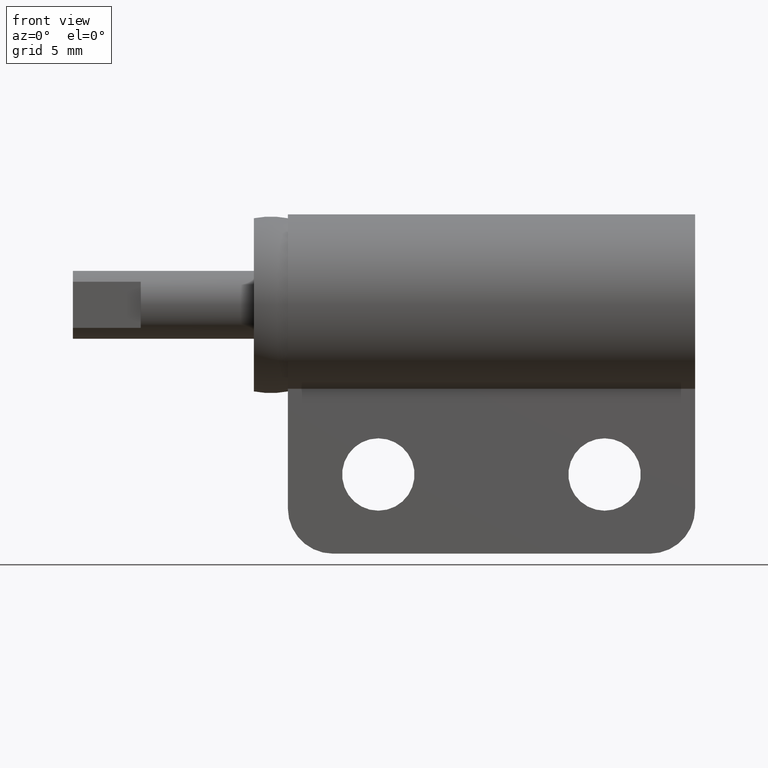
[diagram: clean part render]
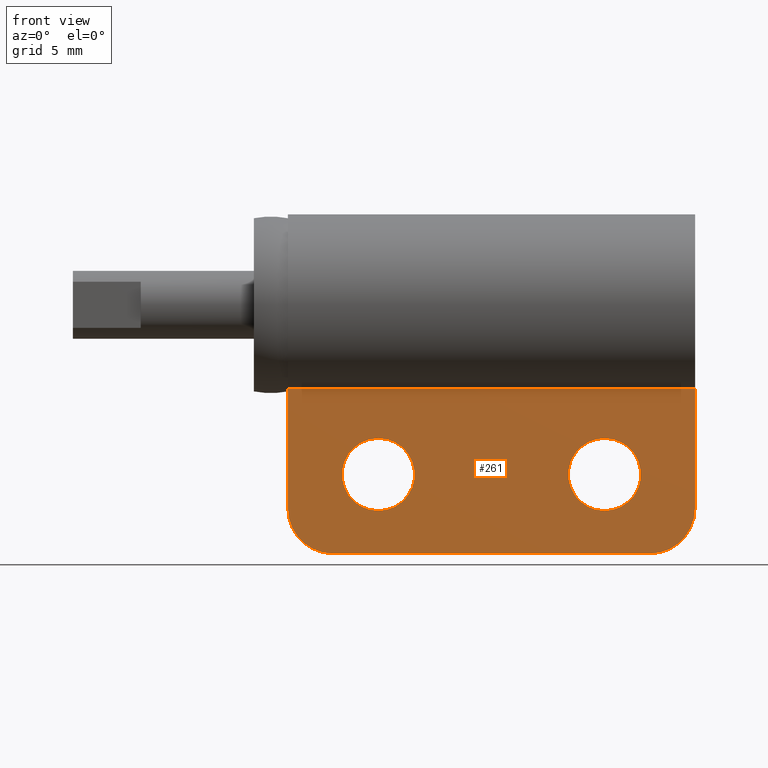
[diagram: same view with one face highlighted and labeled with its STEP entity id]
A machine part, front view. The second image highlights one B-rep face of the part: STEP entity #261.
In plain terms, the highlighted planar face has unit normal (0, 1, 0).
Its self-contained STEP definition (entity closure, byte-faithful):
#261=ADVANCED_FACE('',(#679,#680,#681),#678,.F.);
#678=PLANE('',#1203);
#679=FACE_OUTER_BOUND('',#1204,.T.);
#680=FACE_BOUND('',#1205,.T.);
#681=FACE_BOUND('',#1206,.T.);
#1200=CARTESIAN_POINT('',(4.70000000000E+00,-1.50000000000E+00,-1.17291901000E+01));
#1201=DIRECTION('',(0.00000000000E+00,1.00000000000E+00,0.00000000000E+00));
#1202=DIRECTION('',(0.00000000000E+00,0.00000000000E+00,1.00000000000E+00));
#1203=AXIS2_PLACEMENT_3D('',#1200,#1201,#1202);
#1204=EDGE_LOOP('',(#1533,#1534,#1535,#1536,#1537,#1538));
#1205=EDGE_LOOP('',(#1539,#1540));
#1206=EDGE_LOOP('',(#1541,#1542));
#1533=ORIENTED_EDGE('',*,*,#1745,.F.);
#1534=ORIENTED_EDGE('',*,*,#1756,.T.);
#1535=ORIENTED_EDGE('',*,*,#1757,.T.);
#1536=ORIENTED_EDGE('',*,*,#1758,.F.);
#1537=ORIENTED_EDGE('',*,*,#1759,.T.);
#1538=ORIENTED_EDGE('',*,*,#1760,.T.);
#1539=ORIENTED_EDGE('',*,*,#1761,.F.);
#1540=ORIENTED_EDGE('',*,*,#1762,.F.);
#1541=ORIENTED_EDGE('',*,*,#1763,.F.);
#1542=ORIENTED_EDGE('',*,*,#1764,.F.);
#1745=EDGE_CURVE('',#2340,#2347,#2348,.T.);
#1756=EDGE_CURVE('',#2340,#2422,#2423,.T.);
#1757=EDGE_CURVE('',#2422,#2429,#2430,.T.);
#1758=EDGE_CURVE('',#2436,#2429,#2437,.T.);
#1759=EDGE_CURVE('',#2436,#2443,#2444,.T.);
#1760=EDGE_CURVE('',#2443,#2347,#2450,.T.);
#1761=EDGE_CURVE('',#2456,#2457,#2458,.T.);
#1762=EDGE_CURVE('',#2457,#2456,#2464,.T.);
#1763=EDGE_CURVE('',#2470,#2471,#2472,.T.);
#1764=EDGE_CURVE('',#2471,#2470,#2478,.T.);
#2340=VERTEX_POINT('',#3165);
#2347=VERTEX_POINT('',#3169);
#2348=LINE('',#3170,#3171);
#2422=VERTEX_POINT('',#3217);
#2423=CIRCLE('',#3221,2.00000000000E+00);
#2429=VERTEX_POINT('',#3222);
#2430=LINE('',#3223,#3224);
#2436=VERTEX_POINT('',#3226);
#2437=LINE('',#3227,#3228);
#2443=VERTEX_POINT('',#3230);
#2444=LINE('',#3231,#3232);
#2450=CIRCLE('',#3237,2.00000000000E+00);
#2456=VERTEX_POINT('',#3238);
#2457=VERTEX_POINT('',#3239);
#2458=CIRCLE('',#3243,1.60000000000E+00);
#2464=CIRCLE('',#3247,1.60000000000E+00);
#2470=VERTEX_POINT('',#3248);
#2471=VERTEX_POINT('',#3249);
#2472=CIRCLE('',#3253,1.60000000000E+00);
#2478=CIRCLE('',#3257,1.60000000000E+00);
#3165=CARTESIAN_POINT('',(2.25000000000E+01,-1.50000000000E+00,-1.10000000000E+01));
#3169=CARTESIAN_POINT('',(8.50000000000E+00,-1.50000000000E+00,-1.10000000000E+01));
#3170=CARTESIAN_POINT('',(2.25000000000E+01,-1.50000000000E+00,-1.10000000000E+01));
#3171=VECTOR('',#3172,1.40000000000E+01);
#3172=DIRECTION('',(-1.00000000000E+00,0.00000000000E+00,0.00000000000E+00));
#3217=CARTESIAN_POINT('',(2.45000000000E+01,-1.50000000000E+00,-9.00000000000E+00));
#3218=CARTESIAN_POINT('',(2.25000000000E+01,-1.50000000000E+00,-9.00000000000E+00));
#3219=DIRECTION('',(0.00000000000E+00,-1.00000000000E+00,-0.00000000000E+00));
#3220=DIRECTION('',(2.48689957516E-14,-0.00000000000E+00,1.00000000000E+00));
#3221=AXIS2_PLACEMENT_3D('',#3218,#3219,#3220);
#3222=CARTESIAN_POINT('',(2.45000000000E+01,-1.50000000000E+00,-3.70809900000E+00));
#3223=CARTESIAN_POINT('',(2.45000000000E+01,-1.50000000000E+00,-9.00000000000E+00));
#3224=VECTOR('',#3225,5.29190100000E+00);
#3225=DIRECTION('',(0.00000000000E+00,0.00000000000E+00,1.00000000000E+00));
#3226=CARTESIAN_POINT('',(6.50000000000E+00,-1.50000000000E+00,-3.70809900000E+00));
#3227=CARTESIAN_POINT('',(6.50000000000E+00,-1.50000000000E+00,-3.70809900000E+00));
#3228=VECTOR('',#3229,1.80000000000E+01);
#3229=DIRECTION('',(1.00000000000E+00,0.00000000000E+00,0.00000000000E+00));
#3230=CARTESIAN_POINT('',(6.50000000000E+00,-1.50000000000E+00,-9.00000000000E+00));
#3231=CARTESIAN_POINT('',(6.50000000000E+00,-1.50000000000E+00,-3.70809900000E+00));
#3232=VECTOR('',#3233,5.29190100000E+00);
#3233=DIRECTION('',(0.00000000000E+00,0.00000000000E+00,-1.00000000000E+00));
#3234=CARTESIAN_POINT('',(8.50000000000E+00,-1.50000000000E+00,-9.00000000000E+00));
#3235=DIRECTION('',(0.00000000000E+00,-1.00000000000E+00,0.00000000000E+00));
#3236=DIRECTION('',(1.00000000000E+00,-0.00000000000E+00,-0.00000000000E+00));
#3237=AXIS2_PLACEMENT_3D('',#3234,#3235,#3236);
#3238=CARTESIAN_POINT('',(1.05000000000E+01,-1.50000000000E+00,-9.10000000000E+00));
#3239=CARTESIAN_POINT('',(1.05000000000E+01,-1.50000000000E+00,-5.90000000000E+00));
#3240=CARTESIAN_POINT('',(1.05000000000E+01,-1.50000000000E+00,-7.50000000000E+00));
#3241=DIRECTION('',(0.00000000000E+00,-1.00000000000E+00,0.00000000000E+00));
#3242=DIRECTION('',(-0.00000000000E+00,-0.00000000000E+00,1.00000000000E+00));
#3243=AXIS2_PLACEMENT_3D('',#3240,#3241,#3242);
#3244=CARTESIAN_POINT('',(1.05000000000E+01,-1.50000000000E+00,-7.50000000000E+00));
#3245=DIRECTION('',(0.00000000000E+00,-1.00000000000E+00,0.00000000000E+00));
#3246=DIRECTION('',(-0.00000000000E+00,-0.00000000000E+00,-1.00000000000E+00));
#3247=AXIS2_PLACEMENT_3D('',#3244,#3245,#3246);
#3248=CARTESIAN_POINT('',(2.05000000000E+01,-1.50000000000E+00,-9.10000000000E+00));
#3249=CARTESIAN_POINT('',(2.05000000000E+01,-1.50000000000E+00,-5.90000000000E+00));
#3250=CARTESIAN_POINT('',(2.05000000000E+01,-1.50000000000E+00,-7.50000000000E+00));
#3251=DIRECTION('',(0.00000000000E+00,-1.00000000000E+00,0.00000000000E+00));
#3252=DIRECTION('',(-0.00000000000E+00,-0.00000000000E+00,1.00000000000E+00));
#3253=AXIS2_PLACEMENT_3D('',#3250,#3251,#3252);
#3254=CARTESIAN_POINT('',(2.05000000000E+01,-1.50000000000E+00,-7.50000000000E+00));
#3255=DIRECTION('',(0.00000000000E+00,-1.00000000000E+00,0.00000000000E+00));
#3256=DIRECTION('',(-0.00000000000E+00,-0.00000000000E+00,-1.00000000000E+00));
#3257=AXIS2_PLACEMENT_3D('',#3254,#3255,#3256);